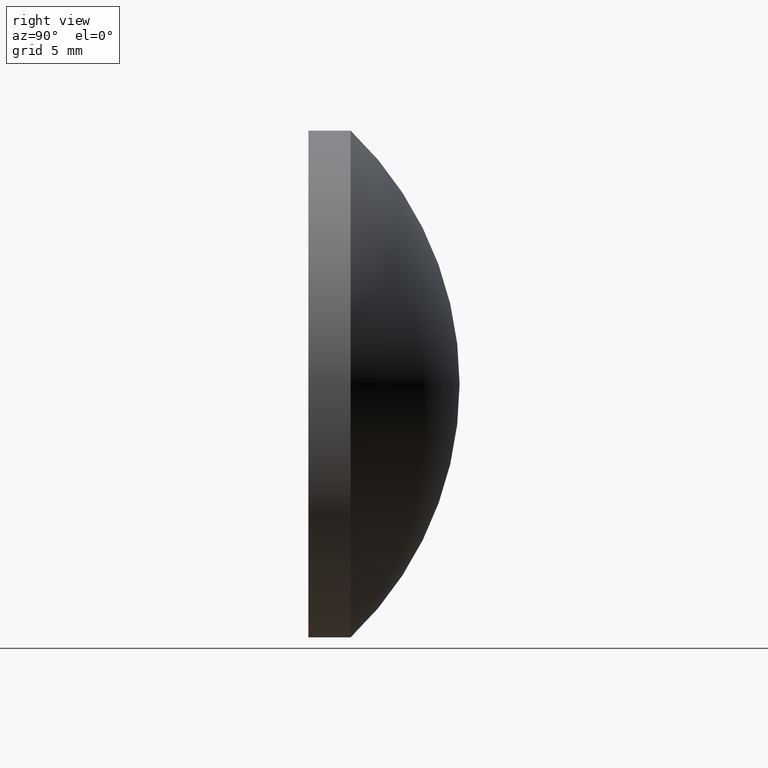
[diagram: clean part render]
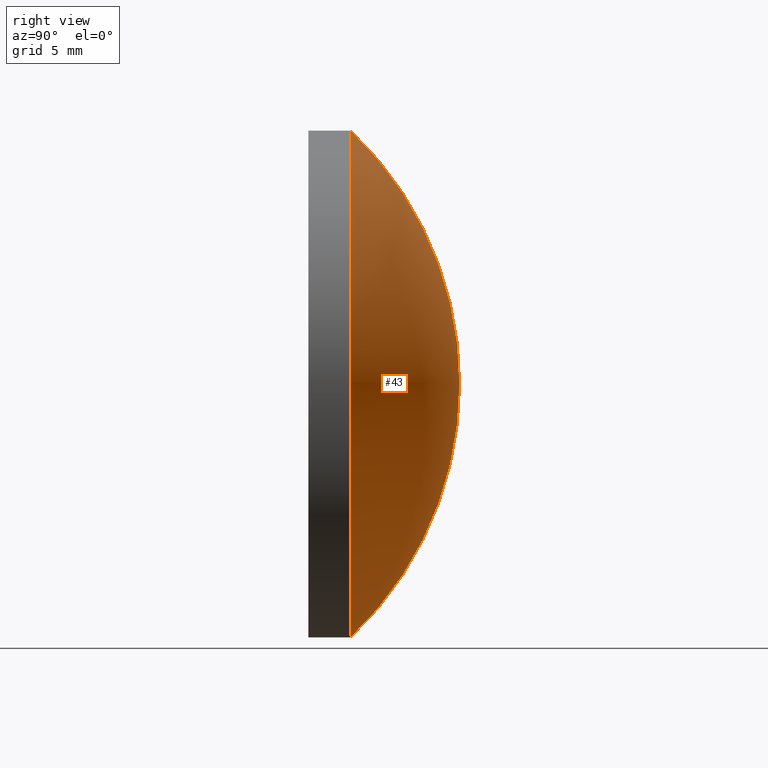
[diagram: same view with one face highlighted and labeled with its STEP entity id]
A machine part, right view. The second image highlights one B-rep face of the part: STEP entity #43.
In plain terms, the highlighted toroidal blend (fillet) surface has major radius 0.0013 mm and minor (blend) radius 20.67 mm.
Its self-contained STEP definition (entity closure, byte-faithful):
#10 = VERTEX_POINT ( 'NONE', #118 ) ;
#12 = EDGE_CURVE ( 'NONE', #42, #10, #15, .T. ) ;
#13 = AXIS2_PLACEMENT_3D ( 'NONE', #58, #171, #182 ) ;
#14 = CARTESIAN_POINT ( 'NONE',  ( 0.000000000000000000, -11.71999995591560406, 0.000000000000000000 ) ) ;
#15 = CIRCLE ( 'NONE', #129, 20.66999999999999460 ) ;
#27 = DIRECTION ( 'NONE',  ( 1.224646799147353454E-16, 0.000000000000000000, -1.000000000000000000 ) ) ;
#36 = FACE_OUTER_BOUND ( 'NONE', #104, .T. ) ;
#42 = VERTEX_POINT ( 'NONE', #179 ) ;
#43 = ADVANCED_FACE ( 'NONE', ( #36 ), #83, .T. ) ;
#50 = ORIENTED_EDGE ( 'NONE', *, *, #195, .T. ) ;
#55 = AXIS2_PLACEMENT_3D ( 'NONE', #188, #140, #27 ) ;
#58 = CARTESIAN_POINT ( 'NONE',  ( 0.000000000000000000, 2.499999999999998668, 0.000000000000000000 ) ) ;
#83 = TOROIDAL_SURFACE ( 'NONE', #173, -0.001349981043710993256, 20.66999999999999815 ) ;
#104 = EDGE_LOOP ( 'NONE', ( #50, #164, #152 ) ) ;
#112 = CIRCLE ( 'NONE', #55, 20.66999999999999460 ) ;
#118 = CARTESIAN_POINT ( 'NONE',  ( 0.000000000000000000, 8.949999999999999289, 0.000000000000000000 ) ) ;
#121 = DIRECTION ( 'NONE',  ( -1.000000000000000000, 0.000000000000000000, 0.000000000000000000 ) ) ;
#129 = AXIS2_PLACEMENT_3D ( 'NONE', #148, #121, #193 ) ;
#139 = DIRECTION ( 'NONE',  ( 0.000000000000000000, 0.000000000000000000, 1.000000000000000000 ) ) ;
#140 = DIRECTION ( 'NONE',  ( 1.000000000000000000, 0.000000000000000000, 1.224646799147353207E-16 ) ) ;
#145 = DIRECTION ( 'NONE',  ( -0.000000000000000000, 1.000000000000000000, -0.000000000000000000 ) ) ;
#148 = CARTESIAN_POINT ( 'NONE',  ( 0.000000000000000000, -11.71999995591560406, -0.001349981043710993256 ) ) ;
#152 = ORIENTED_EDGE ( 'NONE', *, *, #12, .F. ) ;
#159 = CARTESIAN_POINT ( 'NONE',  ( 1.836970198721029589E-15, 2.499999999999997780, -15.00000000000000000 ) ) ;
#162 = CIRCLE ( 'NONE', #13, 15.00000000000000000 ) ;
#164 = ORIENTED_EDGE ( 'NONE', *, *, #197, .T. ) ;
#171 = DIRECTION ( 'NONE',  ( -0.000000000000000000, 1.000000000000000000, -0.000000000000000000 ) ) ;
#173 = AXIS2_PLACEMENT_3D ( 'NONE', #14, #145, #139 ) ;
#179 = CARTESIAN_POINT ( 'NONE',  ( 0.000000000000000000, 2.499999999999997780, 15.00000000000000000 ) ) ;
#182 = DIRECTION ( 'NONE',  ( 0.000000000000000000, 0.000000000000000000, 1.000000000000000000 ) ) ;
#188 = CARTESIAN_POINT ( 'NONE',  ( -1.653249964090270865E-19, -11.71999995591560406, 0.001349981043710993256 ) ) ;
#190 = VERTEX_POINT ( 'NONE', #159 ) ;
#193 = DIRECTION ( 'NONE',  ( 0.000000000000000000, 0.000000000000000000, 1.000000000000000000 ) ) ;
#195 = EDGE_CURVE ( 'NONE', #42, #190, #162, .T. ) ;
#197 = EDGE_CURVE ( 'NONE', #190, #10, #112, .T. ) ;